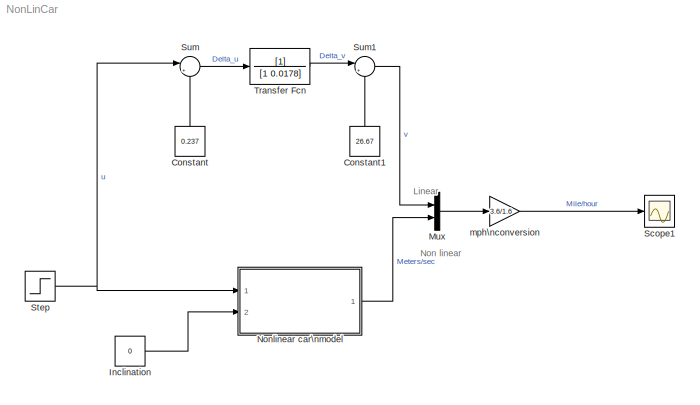
MODEL NonLinCar
KIND model
BLOCK [Constant] Constant
  SID = 56
  Value = 0.237
BLOCK [Constant] Constant1
  SID = 57
  Value = 26.67
BLOCK [Constant] Inclination
  SID = 58
  Value = 0
BLOCK [Mux] Mux
  DisplayOption = bar
  Inputs = 2
  Ports = [2, 1]
  SID = 51
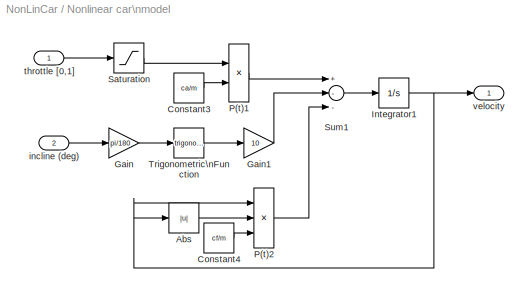
BLOCK [SubSystem] Nonlinear car\nmodel
  FunctionWithSeparateData = off
  MaskHideContents = off
  MinAlgLoopOccurrences = off
  Opaque = off
  Ports = [2, 1]
  PropExecContextOutsideSubsystem = off
  RTWSystemCode = Auto
  RequestExecContextInheritance = off
  SID = 1
BLOCK [Abs] Nonlinear car\nmodel/Abs
  SID = 4
BLOCK [Constant] Nonlinear car\nmodel/Constant3
  SID = 5
  Value = ca/m
BLOCK [Constant] Nonlinear car\nmodel/Constant4
  SID = 6
  Value = cf/m
BLOCK [Gain] Nonlinear car\nmodel/Gain
  Gain = pi/180
  SID = 7
BLOCK [Gain] Nonlinear car\nmodel/Gain1
  Gain = 10
  SID = 8
BLOCK [Integrator] Nonlinear car\nmodel/Integrator1
  InitialCondition = 26.67
  LowerSaturationLimit = 0
  Ports = [1, 1]
  SID = 9
  UpperSaturationLimit = 1
BLOCK [Product] Nonlinear car\nmodel/P(t)1
  Inputs = **
  Ports = [2, 1]
  SID = 10
BLOCK [Product] Nonlinear car\nmodel/P(t)2
  Inputs = ***
  Ports = [3, 1]
  SID = 11
BLOCK [Saturate] Nonlinear car\nmodel/Saturation
  InputPortMap = u0
  LowerLimit = -1
  Ports = [1, 1]
  SID = 12
  UpperLimit = 3
BLOCK [Sum] Nonlinear car\nmodel/Sum1
  Inputs = +--
  Ports = [3, 1]
  SID = 13
BLOCK [Trigonometry] Nonlinear car\nmodel/Trigonometric\nFunction
  Ports = [1, 1]
  SID = 14
BLOCK [Inport] Nonlinear car\nmodel/incline (deg)
  IconDisplay = Port number
  Port = 2
  SID = 3
BLOCK [Inport] Nonlinear car\nmodel/throttle [0,1]
  IconDisplay = Port number
  SID = 2
BLOCK [Outport] Nonlinear car\nmodel/velocity
  IconDisplay = Port number
  SID = 15
BLOCK [Scope] Scope1
  DataFormat = StructureWithTime
  Floating = off
  LimitDataPoints = off
  NumInputPorts = 1
  Ports = [1]
  SID = 40
  SampleTime = 0
  SaveName = ScopeData1
  ShowLegends = off
  TimeRange = 200
  YMax = 72
  YMin = 60
BLOCK [Step] Step
  After = 0.243
  Before = 0.237
  SID = 41
  SampleTime = 0
  Time = 10
BLOCK [Sum] Sum
  IconShape = round
  InputSameDT = off
  Inputs = |+-
  OutDataTypeStr = Inherit: Inherit via internal rule
  Ports = [2, 1]
  SID = 53
  SaturateOnIntegerOverflow = off
BLOCK [Sum] Sum1
  IconShape = round
  InputSameDT = off
  Inputs = |++
  OutDataTypeStr = Inherit: Inherit via internal rule
  Ports = [2, 1]
  SID = 54
  SaturateOnIntegerOverflow = off
BLOCK [TransferFcn] Transfer Fcn
  Denominator = [1 0.0178]
  SID = 52
BLOCK [Gain] mph\nconversion
  Gain = 3.6/1.6
  SID = 44
ANNOTATION (root): Linear
ANNOTATION (root): Non linear
LINE Constant1:1 -> Sum1:2
LINE Constant:1 -> Sum:2
LINE Inclination:1 -> Nonlinear car\nmodel:2
LINE Mux:1 -> mph\nconversion:1
LINE Nonlinear car\nmodel/Abs:1 -> Nonlinear car\nmodel/P(t)2:2
LINE Nonlinear car\nmodel/Constant3:1 -> Nonlinear car\nmodel/P(t)1:2
LINE Nonlinear car\nmodel/Constant4:1 -> Nonlinear car\nmodel/P(t)2:3
LINE Nonlinear car\nmodel/Gain1:1 -> Nonlinear car\nmodel/Sum1:2
LINE Nonlinear car\nmodel/Gain:1 -> Nonlinear car\nmodel/Trigonometric\nFunction:1
NET Nonlinear car\nmodel/Integrator1:1 -> Nonlinear car\nmodel/Abs:1, Nonlinear car\nmodel/P(t)2:1, Nonlinear car\nmodel/velocity:1
LINE Nonlinear car\nmodel/P(t)1:1 -> Nonlinear car\nmodel/Sum1:1
LINE Nonlinear car\nmodel/P(t)2:1 -> Nonlinear car\nmodel/Sum1:3
LINE Nonlinear car\nmodel/Saturation:1 -> Nonlinear car\nmodel/P(t)1:1
LINE Nonlinear car\nmodel/Sum1:1 -> Nonlinear car\nmodel/Integrator1:1
LINE Nonlinear car\nmodel/Trigonometric\nFunction:1 -> Nonlinear car\nmodel/Gain1:1
LINE Nonlinear car\nmodel/incline (deg):1 -> Nonlinear car\nmodel/Gain:1
LINE Nonlinear car\nmodel/throttle [0,1]:1 -> Nonlinear car\nmodel/Saturation:1
LINE Nonlinear car\nmodel:1 -> Mux:2
NET Step:1 -> Nonlinear car\nmodel:1, Sum:1
LINE Sum1:1 -> Mux:1
LINE Sum:1 -> Transfer Fcn:1
LINE Transfer Fcn:1 -> Sum1:1
LINE mph\nconversion:1 -> Scope1:1
note: NET lines group one-source signal fan-out (src -> all destinations, sorted); 1:1 wires keep LINE
